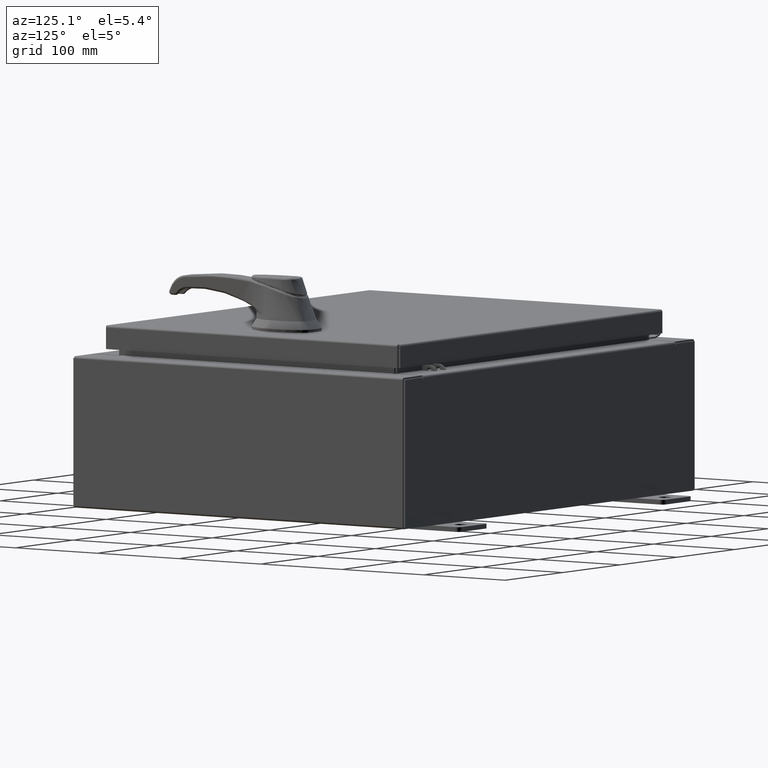
[diagram: clean part render]
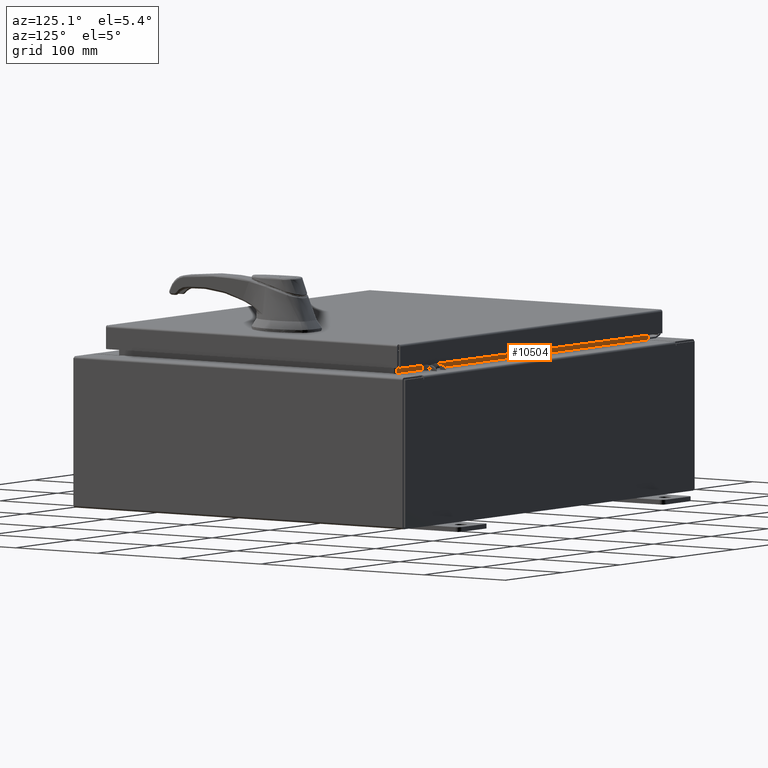
[diagram: same view with one face highlighted and labeled with its STEP entity id]
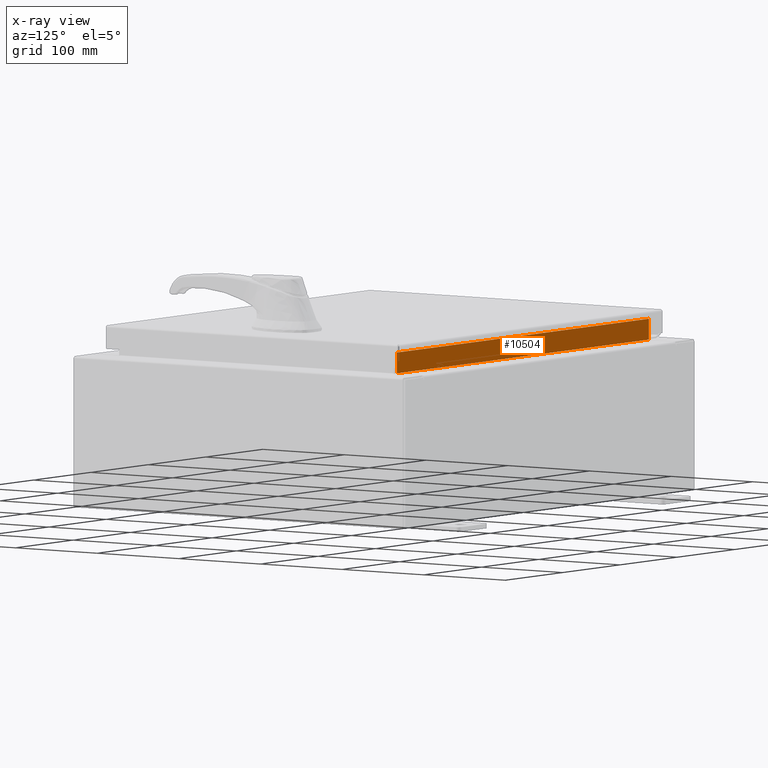
[diagram: x-ray of the same camera — body ghosted, the highlighted face saturated]
A machine part, auxiliary view. The second image highlights one B-rep face of the part: STEP entity #10504.
The next image is the same camera in x-ray: the body ghosted, the highlighted face saturated — about 0% of this face is hidden behind the body in this view.
In plain terms, the highlighted planar face has unit normal (0, 1, 0).
Its self-contained STEP definition (entity closure, byte-faithful):
#3095 = DIRECTION ( 'NONE',  ( -0.0000000000000000000, -0.0000000000000000000, 1.000000000000000000 ) ) ;
#3615 = DIRECTION ( 'NONE',  ( 0.0000000000000000000, -0.0000000000000000000, 1.000000000000000000 ) ) ;
#6411 = VERTEX_POINT ( 'NONE', #33362 ) ;
#7135 = CARTESIAN_POINT ( 'NONE',  ( -8.637200000000000000, -1.300299999999999800, 3.000000000000005300 ) ) ;
#10504 = ADVANCED_FACE ( 'NONE', ( #38768 ), #68671, .T. ) ;
#11270 = CARTESIAN_POINT ( 'NONE',  ( 8.637200000000000000, -1.300299999999999800, 3.925300000000005300 ) ) ;
#12480 = LINE ( 'NONE', #11270, #96961 ) ;
#13063 = VECTOR ( 'NONE', #62152, 39.37007874015748100 ) ;
#13974 = CARTESIAN_POINT ( 'NONE',  ( -8.637200000000000000, -1.300300000000000000, 3.837600000000005000 ) ) ;
#18356 = VECTOR ( 'NONE', #47962, 39.37007874015748100 ) ;
#29604 = LINE ( 'NONE', #77986, #92298 ) ;
#33362 = CARTESIAN_POINT ( 'NONE',  ( 8.637199999999996400, -1.300299999999999800, 3.013000000000004800 ) ) ;
#33500 = CARTESIAN_POINT ( 'NONE',  ( 8.637200000000000000, -1.300299999999999800, 3.837600000000005000 ) ) ;
#36177 = CARTESIAN_POINT ( 'NONE',  ( 0.0000000000000000000, -1.300299999999999800, 0.0000000000000000000 ) ) ;
#37257 = DIRECTION ( 'NONE',  ( -1.000000000000000000, -0.0000000000000000000, -0.0000000000000000000 ) ) ;
#37459 = EDGE_LOOP ( 'NONE', ( #88437, #48799, #44490, #49845 ) ) ;
#38768 = FACE_OUTER_BOUND ( 'NONE', #37459, .T. ) ;
#44490 = ORIENTED_EDGE ( 'NONE', *, *, #66223, .F. ) ;
#46872 = CARTESIAN_POINT ( 'NONE',  ( -8.637200000000000000, -1.300299999999999800, 3.013000000000004800 ) ) ;
#46897 = VERTEX_POINT ( 'NONE', #13974 ) ;
#47962 = DIRECTION ( 'NONE',  ( -0.0000000000000000000, -0.0000000000000000000, -1.000000000000000000 ) ) ;
#48799 = ORIENTED_EDGE ( 'NONE', *, *, #102950, .F. ) ;
#49845 = ORIENTED_EDGE ( 'NONE', *, *, #101832, .F. ) ;
#51972 = VERTEX_POINT ( 'NONE', #33500 ) ;
#52636 = DIRECTION ( 'NONE',  ( 0.0000000000000000000, 1.000000000000000000, 0.0000000000000000000 ) ) ;
#54133 = AXIS2_PLACEMENT_3D ( 'NONE', #36177, #52636, #3615 ) ;
#57472 = VERTEX_POINT ( 'NONE', #46872 ) ;
#62152 = DIRECTION ( 'NONE',  ( 1.000000000000000000, 0.0000000000000000000, -6.325772226333218300E-017 ) ) ;
#66223 = EDGE_CURVE ( 'NONE', #6411, #51972, #12480, .T. ) ;
#68671 = PLANE ( 'NONE',  #54133 ) ;
#69789 = CARTESIAN_POINT ( 'NONE',  ( -8.637200000000000000, -1.300299999999999800, 3.013000000000005200 ) ) ;
#72991 = EDGE_CURVE ( 'NONE', #46897, #57472, #81047, .T. ) ;
#75792 = LINE ( 'NONE', #69789, #13063 ) ;
#77986 = CARTESIAN_POINT ( 'NONE',  ( 8.637200000000000000, -1.300300000000000000, 3.837600000000005000 ) ) ;
#81047 = LINE ( 'NONE', #7135, #18356 ) ;
#88437 = ORIENTED_EDGE ( 'NONE', *, *, #72991, .F. ) ;
#92298 = VECTOR ( 'NONE', #37257, 39.37007874015748100 ) ;
#96961 = VECTOR ( 'NONE', #3095, 39.37007874015748100 ) ;
#101832 = EDGE_CURVE ( 'NONE', #57472, #6411, #75792, .T. ) ;
#102950 = EDGE_CURVE ( 'NONE', #51972, #46897, #29604, .T. ) ;